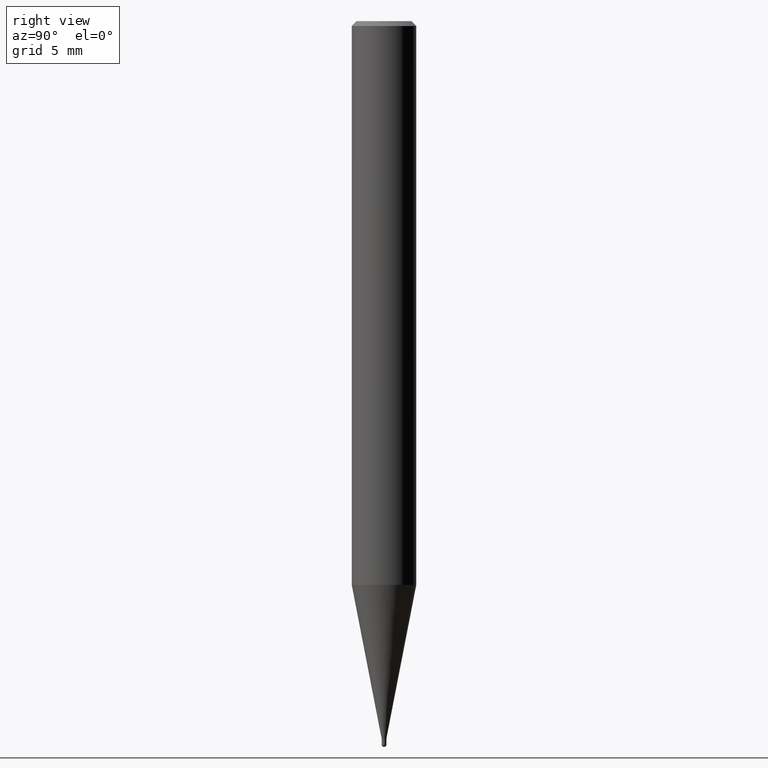
[diagram: clean part render]
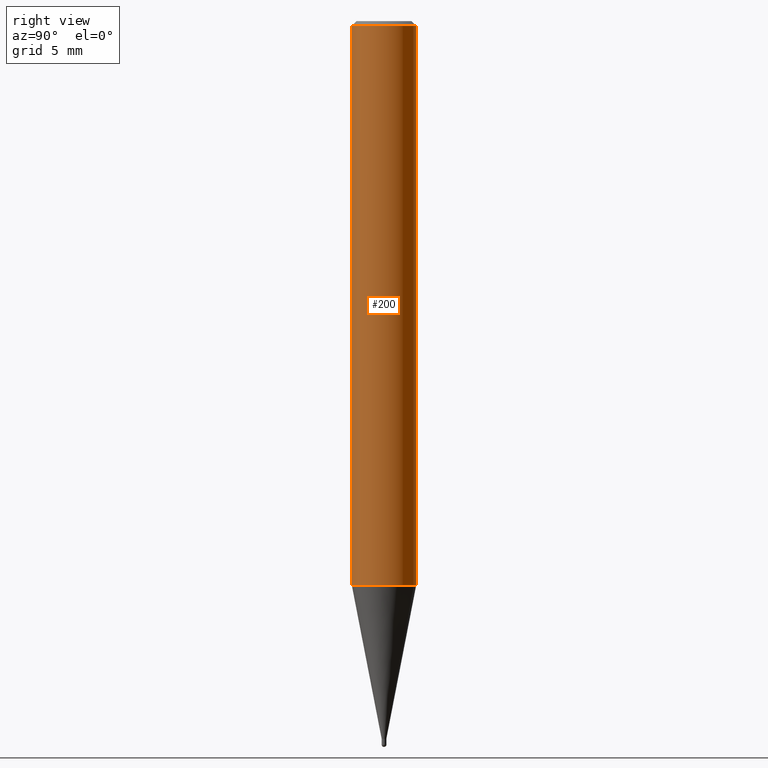
[diagram: same view with one face highlighted and labeled with its STEP entity id]
A machine part, right view. The second image highlights one B-rep face of the part: STEP entity #200.
In plain terms, the highlighted cylindrical surface (edge-blend (fillet) strip) has radius 2 mm, axis along (-0, -0, 1).
Its self-contained STEP definition (entity closure, byte-faithful):
#102=EDGE_CURVE('',#194,#184,#244,.T.);
#110=VERTEX_POINT('',#253);
#130=EDGE_CURVE('',#110,#138,#275,.T.);
#138=VERTEX_POINT('',#285);
#166=EDGE_CURVE('',#110,#184,#316,.T.);
#168=EDGE_CURVE('',#138,#194,#318,.T.);
#184=VERTEX_POINT('',#337);
#194=VERTEX_POINT('',#349);
#200=ADVANCED_FACE('',(#356),#357,.T.);
#244=LINE('',#397,#398);
#253=CARTESIAN_POINT('',(0.0,2.0,-0.299999999999997));
#275=LINE('',#437,#438);
#285=CARTESIAN_POINT('',(0.0,2.0,-34.957));
#316=CIRCLE('',#489,2.0);
#318=CIRCLE('',#492,2.0);
#337=CARTESIAN_POINT('',(2.44921270764475E-016,-2.0,-0.299999999999997));
#349=CARTESIAN_POINT('',(2.44921270764475E-016,-2.0,-34.957));
#356=FACE_OUTER_BOUND('',#538,.T.);
#357=CYLINDRICAL_SURFACE('',#539,2.0);
#397=CARTESIAN_POINT('',(2.44921270764475E-016,-2.0,-17.6285));
#398=VECTOR('',#568,1.0);
#437=CARTESIAN_POINT('',(-2.44921270764475E-016,2.0,-17.6285));
#438=VECTOR('',#604,1.0);
#489=AXIS2_PLACEMENT_3D('',#654,#655,#656);
#492=AXIS2_PLACEMENT_3D('',#657,#658,#659);
#538=EDGE_LOOP('',(#713,#714,#715,#716));
#539=AXIS2_PLACEMENT_3D('',#717,#718,#719);
#568=DIRECTION('',(-0.0,-0.0,1.0));
#604=DIRECTION('',(0.0,0.0,-1.0));
#654=CARTESIAN_POINT('',(0.0,0.0,-0.299999999999997));
#655=DIRECTION('',(0.0,0.0,-1.0));
#656=DIRECTION('',(0.0,1.0,0.0));
#657=CARTESIAN_POINT('',(0.0,0.0,-34.957));
#658=DIRECTION('',(0.0,0.0,-1.0));
#659=DIRECTION('',(0.0,1.0,0.0));
#713=ORIENTED_EDGE('',*,*,#130,.F.);
#714=ORIENTED_EDGE('',*,*,#166,.T.);
#715=ORIENTED_EDGE('',*,*,#102,.F.);
#716=ORIENTED_EDGE('',*,*,#168,.F.);
#717=CARTESIAN_POINT('',(0.0,0.0,-17.6285));
#718=DIRECTION('',(-0.0,-0.0,1.0));
#719=DIRECTION('',(0.0,1.0,0.0));